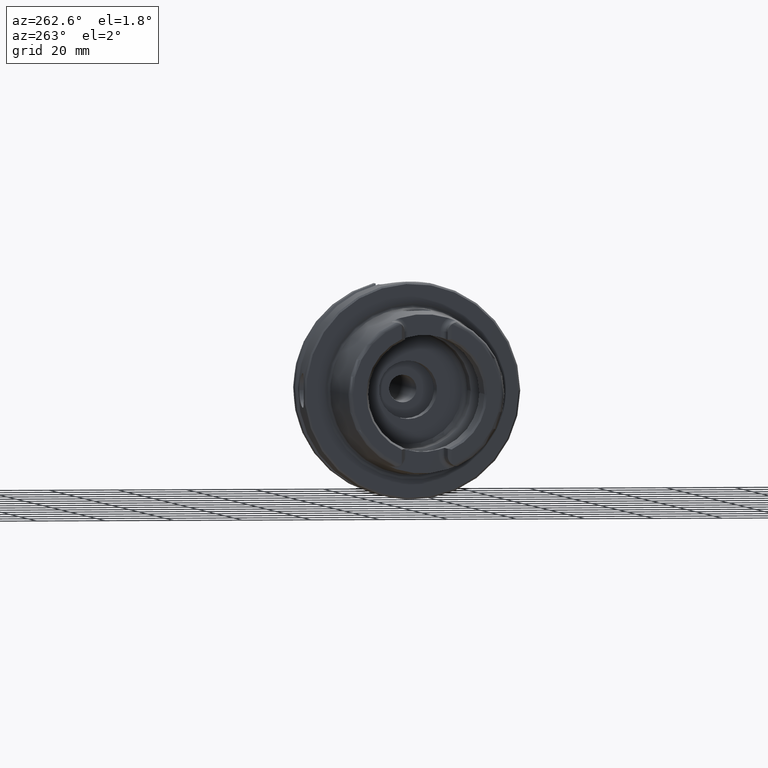
[diagram: clean part render]
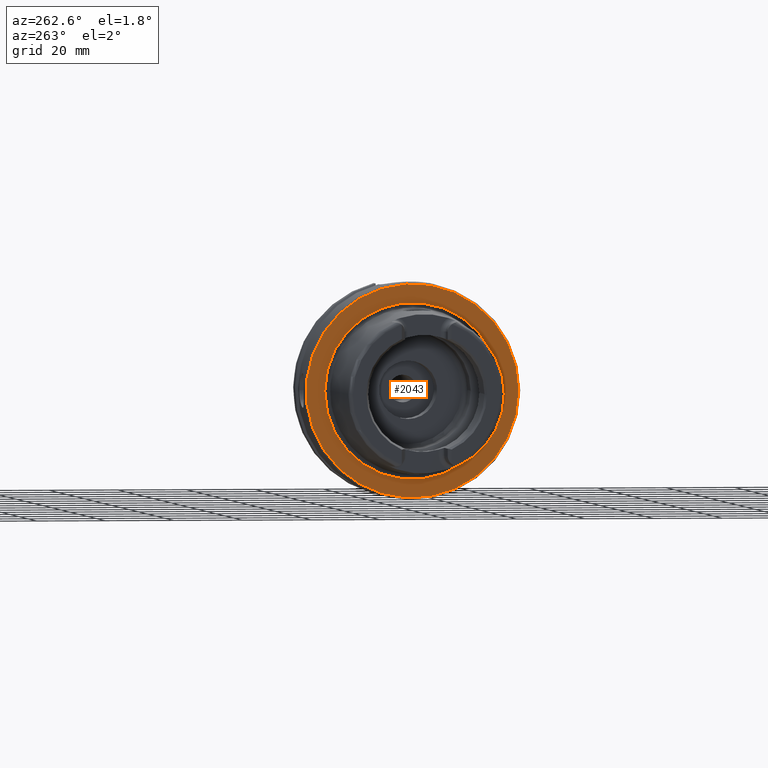
[diagram: same view with one face highlighted and labeled with its STEP entity id]
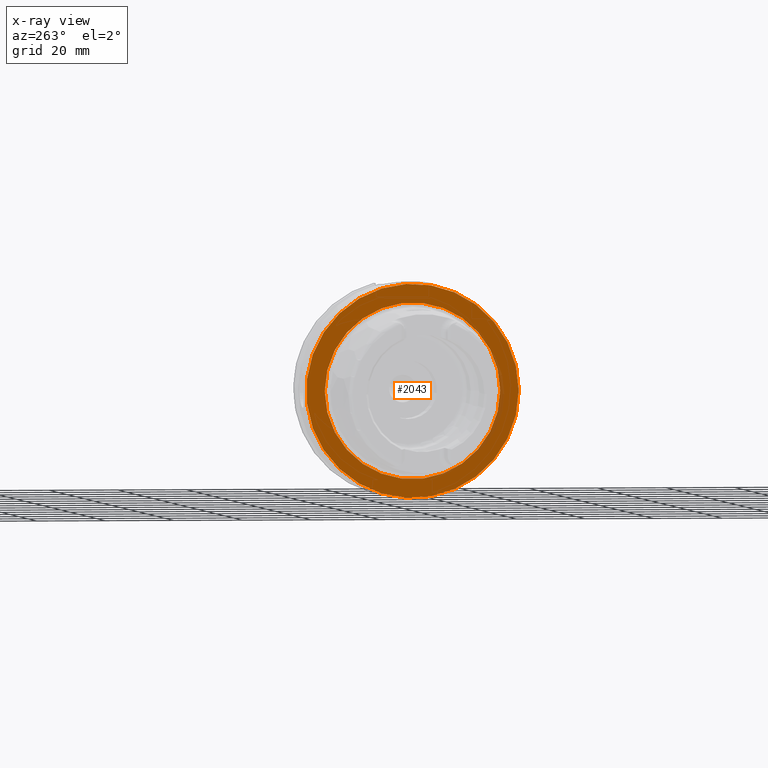
[diagram: x-ray of the same camera — body ghosted, the highlighted face saturated]
A machine part, auxiliary view. The second image highlights one B-rep face of the part: STEP entity #2043.
The next image is the same camera in x-ray: the body ghosted, the highlighted face saturated — about 4% of this face is hidden behind the body in this view.
In plain terms, the highlighted planar face has unit normal (-1, 0, 0).
Its self-contained STEP definition (entity closure, byte-faithful):
#107=FACE_BOUND('',#445,.T.);
#149=PLANE('',#2307);
#318=FACE_OUTER_BOUND('',#444,.T.);
#444=EDGE_LOOP('',(#1896));
#445=EDGE_LOOP('',(#1897));
#780=CIRCLE('',#2306,25.5879092835167);
#781=CIRCLE('',#2308,31.);
#982=VERTEX_POINT('',#4351);
#983=VERTEX_POINT('',#4355);
#1288=EDGE_CURVE('',#982,#982,#780,.T.);
#1289=EDGE_CURVE('',#983,#983,#781,.T.);
#1896=ORIENTED_EDGE('',*,*,#1289,.F.);
#1897=ORIENTED_EDGE('',*,*,#1288,.T.);
#2043=ADVANCED_FACE('',(#318,#107),#149,.T.);
#2306=AXIS2_PLACEMENT_3D('',#4353,#2892,#2893);
#2307=AXIS2_PLACEMENT_3D('',#4354,#2894,#2895);
#2308=AXIS2_PLACEMENT_3D('',#4356,#2896,#2897);
#2892=DIRECTION('center_axis',(1.,0.,0.));
#2893=DIRECTION('ref_axis',(0.,0.,-1.));
#2894=DIRECTION('center_axis',(-1.,0.,0.));
#2895=DIRECTION('ref_axis',(0.,0.,1.));
#2896=DIRECTION('center_axis',(1.,0.,0.));
#2897=DIRECTION('ref_axis',(0.,0.,-1.));
#4351=CARTESIAN_POINT('',(-3.55618312575245E-16,-25.5879092835167,-3.13361512009315E-15));
#4353=CARTESIAN_POINT('Origin',(0.,0.,0.));
#4354=CARTESIAN_POINT('Origin',(0.,31.,0.));
#4355=CARTESIAN_POINT('',(-5.89805981832114E-16,-31.,-3.7964050773568E-15));
#4356=CARTESIAN_POINT('Origin',(0.,0.,0.));